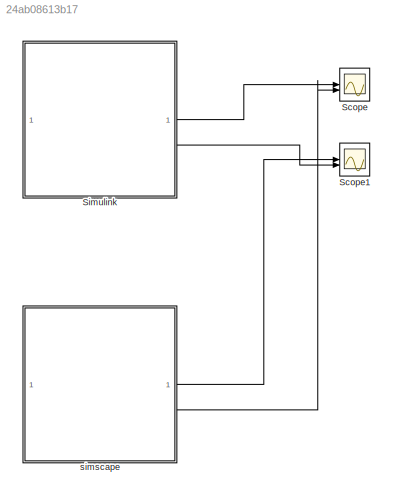
MODEL slx_24ab08613b17
KIND model
CONFIG AbsTol = auto
CONFIG EnableMultiTasking = off
CONFIG FixedStep = auto
CONFIG MaxStep = auto
CONFIG MinStep = auto
CONFIG RelTol = 1e-3
CONFIG SampleTimeConstraint = Unconstrained
CONFIG SolverName = VariableStepAuto
CONFIG StartTime = 0.0
CONFIG StopTime = 10.0
BLOCK [Scope] Scope
  Floating = off
  NumInputPorts = 2
  ScopeSpecificationString = Simulink.scopes.TimeScopeBlockCfg('CurrentConfiguration', extmgr.ConfigurationSet(extmgr.Configuration('Core','General UI',true),extmgr.Configuration('Core','Source UI',true),extmgr.Configuration('Sources','WiredSimulink',true),extmgr.Configuration('Visuals','Time Domain',true,'SerializedDisplays',{struct('MinYLimReal','-0.00448','MaxYLimReal','0.00554','YLabelReal','','MinYLimMag','0.00000','MaxY...<+1396ch>
BLOCK [Scope] Scope1
  Floating = off
  NumInputPorts = 2
  ScopeSpecificationString = Simulink.scopes.TimeScopeBlockCfg('CurrentConfiguration', extmgr.ConfigurationSet(extmgr.Configuration('Core','General UI',true),extmgr.Configuration('Core','Source UI',true),extmgr.Configuration('Sources','WiredSimulink',true,'DataLoggingVariableName','ScopeData1'),extmgr.Configuration('Visuals','Time Domain',true,'SerializedDisplays',{struct('MinYLimReal','-0.00811','MaxYLimReal','0.01315','YLab...<+1437ch>
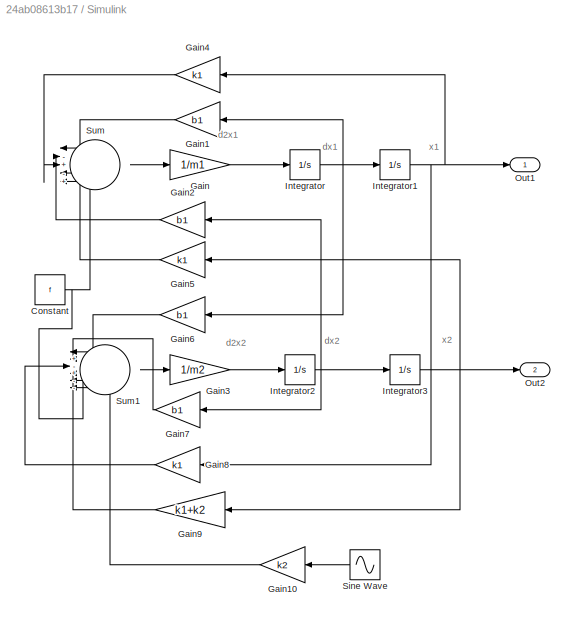
BLOCK [SubSystem] Simulink
BLOCK [Constant] Simulink/Constant
  Value = f
BLOCK [Gain] Simulink/Gain
  Gain = 1/m1
BLOCK [Gain] Simulink/Gain1
  Gain = b1
  NameLocation = top
BLOCK [Gain] Simulink/Gain10
  Gain = k2
  NameLocation = top
BLOCK [Gain] Simulink/Gain2
  Gain = b1
  NameLocation = top
BLOCK [Gain] Simulink/Gain3
  Gain = 1/m2
BLOCK [Gain] Simulink/Gain4
  Gain = k1
  NameLocation = top
BLOCK [Gain] Simulink/Gain5
  Gain = k1
  NameLocation = top
BLOCK [Gain] Simulink/Gain6
  Gain = b1
  NameLocation = top
BLOCK [Gain] Simulink/Gain7
  Gain = b1
  NameLocation = top
BLOCK [Gain] Simulink/Gain8
  Gain = k1
  NameLocation = top
BLOCK [Gain] Simulink/Gain9
  Gain = k1+k2
  NameLocation = top
BLOCK [Integrator] Simulink/Integrator
BLOCK [Integrator] Simulink/Integrator1
BLOCK [Integrator] Simulink/Integrator2
BLOCK [Integrator] Simulink/Integrator3
BLOCK [Outport] Simulink/Out1
BLOCK [Outport] Simulink/Out2
  Port = 2
BLOCK [Sin] Simulink/Sine Wave
  Amplitude = 0.05
  Frequency = 0.5*pi
  NameLocation = top
  SampleTime = 0
BLOCK [Sum] Simulink/Sum
  Inputs = |-+-++
BLOCK [Sum] Simulink/Sum1
  Inputs = |+-+--+
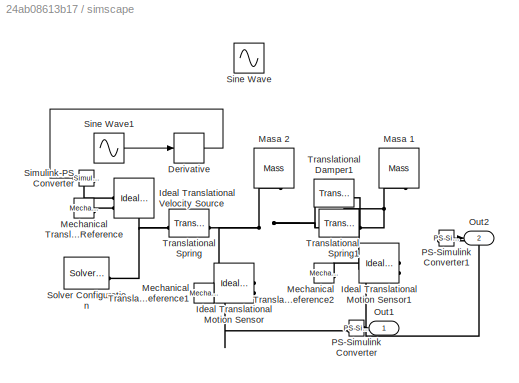
BLOCK [SubSystem] simscape
BLOCK [Derivative] simscape/Derivative
BLOCK [Reference] simscape/Ideal Translational Motion Sensor  REF=fl_lib/Mechanical/Mechanical Sensors/Ideal Translational
Motion Sensor
  NameLocation = top
  SourceBlock = fl_lib/Mechanical/Mechanical Sensors/Ideal Translational\nMotion Sensor
  SourceType = Ideal Translational\nMotion Sensor
BLOCK [Reference] simscape/Ideal Translational Motion Sensor1  REF=fl_lib/Mechanical/Mechanical Sensors/Ideal Translational
Motion Sensor
  NameLocation = top
  SourceBlock = fl_lib/Mechanical/Mechanical Sensors/Ideal Translational\nMotion Sensor
  SourceType = Ideal Translational\nMotion Sensor
BLOCK [Reference] simscape/Ideal Translational Velocity Source  REF=fl_lib/Mechanical/Mechanical Sources/Ideal Translational
Velocity Source
  SourceBlock = fl_lib/Mechanical/Mechanical Sources/Ideal Translational\nVelocity Source
  SourceType = Ideal Translational\nVelocity Source
BLOCK [Reference] simscape/Masa 1  REF=fl_lib/Mechanical/Translational
Elements/Mass
  NameLocation = left
  SourceBlock = fl_lib/Mechanical/Translational\nElements/Mass
  SourceType = Mass
BLOCK [Reference] simscape/Masa 2   REF=fl_lib/Mechanical/Translational
Elements/Mass
  NameLocation = left
  SourceBlock = fl_lib/Mechanical/Translational\nElements/Mass
  SourceType = Mass
BLOCK [Reference] simscape/Mechanical Translational Reference  REF=fl_lib/Mechanical/Translational
Elements/Mechanical
Translational
Reference
  SourceBlock = fl_lib/Mechanical/Translational\nElements/Mechanical\nTranslational\nReference
  SourceType = Mechanical\nTranslational\nReference
BLOCK [Reference] simscape/Mechanical Translational Reference1  REF=fl_lib/Mechanical/Translational
Elements/Mechanical
Translational
Reference
  SourceBlock = fl_lib/Mechanical/Translational\nElements/Mechanical\nTranslational\nReference
  SourceType = Mechanical\nTranslational\nReference
BLOCK [Reference] simscape/Mechanical Translational Reference2  REF=fl_lib/Mechanical/Translational
Elements/Mechanical
Translational
Reference
  SourceBlock = fl_lib/Mechanical/Translational\nElements/Mechanical\nTranslational\nReference
  SourceType = Mechanical\nTranslational\nReference
BLOCK [Outport] simscape/Out1
BLOCK [Outport] simscape/Out2
  Port = 2
BLOCK [Reference] simscape/PS-Simulink Converter  REF=nesl_utility/PS-Simulink
Converter
  SourceBlock = nesl_utility/PS-Simulink\nConverter
  SourceType = PS-Simulink\nConverter
BLOCK [Reference] simscape/PS-Simulink Converter1  REF=nesl_utility/PS-Simulink
Converter
  SourceBlock = nesl_utility/PS-Simulink\nConverter
  SourceType = PS-Simulink\nConverter
BLOCK [Reference] simscape/Simulink-PS Converter  REF=nesl_utility/Simulink-PS
Converter
  SourceBlock = nesl_utility/Simulink-PS\nConverter
  SourceType = Simulink-PS\nConverter
BLOCK [Sin] simscape/Sine Wave
  Amplitude = 0.05
  Frequency = 0.5*pi
  NameLocation = top
  SampleTime = 0
BLOCK [Sin] simscape/Sine Wave1
  Amplitude = 0.05
  Frequency = 0.5*pi
  SampleTime = 0
BLOCK [Reference] simscape/Solver Configuration  REF=nesl_utility/Solver
Configuration
  SourceBlock = nesl_utility/Solver\nConfiguration
  SourceType = Solver\nConfiguration
BLOCK [Reference] simscape/Translational Damper1  REF=fl_lib/Mechanical/Translational
Elements/Translational Damper
  SourceBlock = fl_lib/Mechanical/Translational\nElements/Translational Damper
  SourceType = Translational Damper
BLOCK [Reference] simscape/Translational Spring  REF=fl_lib/Mechanical/Translational
Elements/Translational Spring
  SourceBlock = fl_lib/Mechanical/Translational\nElements/Translational Spring
  SourceType = Translational Spring
BLOCK [Reference] simscape/Translational Spring1  REF=fl_lib/Mechanical/Translational
Elements/Translational Spring
  SourceBlock = fl_lib/Mechanical/Translational\nElements/Translational Spring
  SourceType = Translational Spring
ANNOTATION Simulink: d2x1
ANNOTATION Simulink: d2x2
ANNOTATION Simulink: dx1
ANNOTATION Simulink: dx2
ANNOTATION Simulink: x1
ANNOTATION Simulink: x2
NET Simulink/Constant:1 -> Simulink/Sum1:5, Simulink/Sum:5
LINE Simulink/Gain10:1 -> Simulink/Sum1:6
LINE Simulink/Gain1:1 -> Simulink/Sum:1
LINE Simulink/Gain2:1 -> Simulink/Sum:2
LINE Simulink/Gain3:1 -> Simulink/Integrator2:1
LINE Simulink/Gain4:1 -> Simulink/Sum:3
LINE Simulink/Gain5:1 -> Simulink/Sum:4
LINE Simulink/Gain6:1 -> Simulink/Sum1:1
LINE Simulink/Gain7:1 -> Simulink/Sum1:2
LINE Simulink/Gain8:1 -> Simulink/Sum1:3
LINE Simulink/Gain9:1 -> Simulink/Sum1:4
LINE Simulink/Gain:1 -> Simulink/Integrator:1
NET Simulink/Integrator1:1 -> Simulink/Gain4:1, Simulink/Gain8:1, Simulink/Out1:1
NET Simulink/Integrator2:1 -> Simulink/Gain2:1, Simulink/Gain7:1, Simulink/Integrator3:1
NET Simulink/Integrator3:1 -> Simulink/Gain5:1, Simulink/Gain9:1, Simulink/Out2:1
NET Simulink/Integrator:1 -> Simulink/Gain1:1, Simulink/Gain6:1, Simulink/Integrator1:1
LINE Simulink/Sine Wave:1 -> Simulink/Gain10:1
LINE Simulink/Sum1:1 -> Simulink/Gain3:1
LINE Simulink/Sum:1 -> Simulink/Gain:1
LINE Simulink:1 -> Scope:1
LINE Simulink:2 -> Scope1:2
LINE simscape/Derivative:1 -> simscape/Simulink-PS Converter:1
LINE simscape/PS-Simulink Converter1:1 -> simscape/Out2:1
LINE simscape/PS-Simulink Converter:1 -> simscape/Out1:1
LINE simscape/Sine Wave1:1 -> simscape/Derivative:1
LINE simscape:1 -> Scope1:1
LINE simscape:2 -> Scope:2
PNET net1: simscape/Ideal Translational Motion Sensor1:LConn1 -- simscape/Masa 1:LConn1 -- simscape/Translational Damper1:RConn1 -- simscape/Translational Spring1:RConn1
PLINE simscape/Ideal Translational Motion Sensor1:RConn1 -- simscape/Mechanical Translational Reference2:LConn1
PLINE simscape/Ideal Translational Motion Sensor1:RConn2 -- simscape/PS-Simulink Converter1:LConn1
PNET net2: simscape/Ideal Translational Motion Sensor:LConn1 -- simscape/Masa 2 :LConn1 -- simscape/Translational Damper1:LConn1 -- simscape/Translational Spring1:LConn1 -- simscape/Translational Spring:RConn1
PLINE simscape/Ideal Translational Motion Sensor:RConn1 -- simscape/Mechanical Translational Reference1:LConn1
PLINE simscape/Ideal Translational Motion Sensor:RConn2 -- simscape/PS-Simulink Converter:LConn1
PNET net3: simscape/Ideal Translational Velocity Source:LConn1 -- simscape/Solver Configuration:RConn1 -- simscape/Translational Spring:LConn1
PLINE simscape/Ideal Translational Velocity Source:RConn1 -- simscape/Simulink-PS Converter:RConn1
PLINE simscape/Ideal Translational Velocity Source:RConn2 -- simscape/Mechanical Translational Reference:LConn1
note: NET lines group one-source signal fan-out (src -> all destinations, sorted); 1:1 wires keep LINE; PNET lines group multi-terminal physical nets as a canonical sorted terminal list (undirected conserving connections); 2-terminal nets keep the pairwise PLINE form
